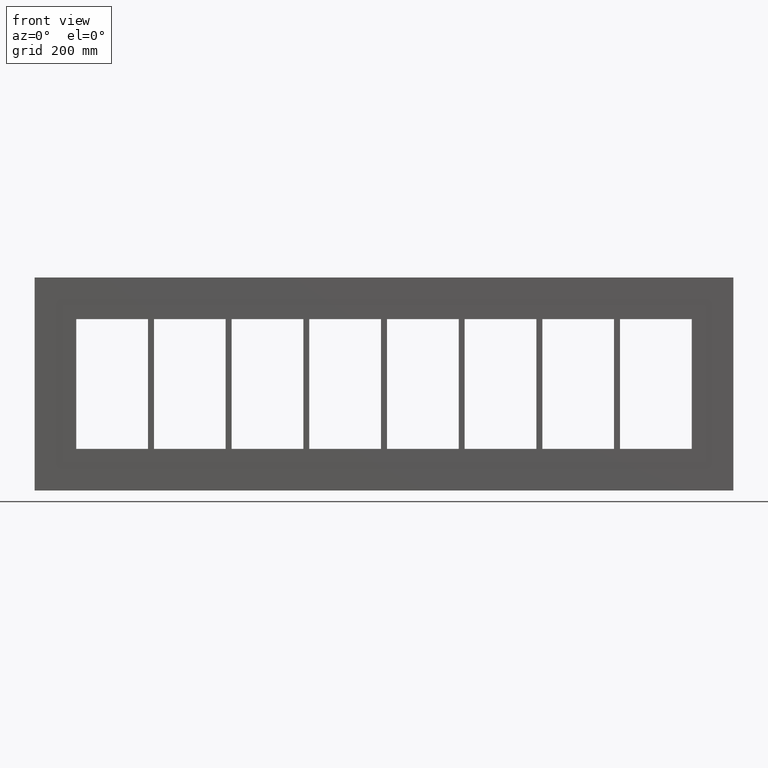
[diagram: clean part render]
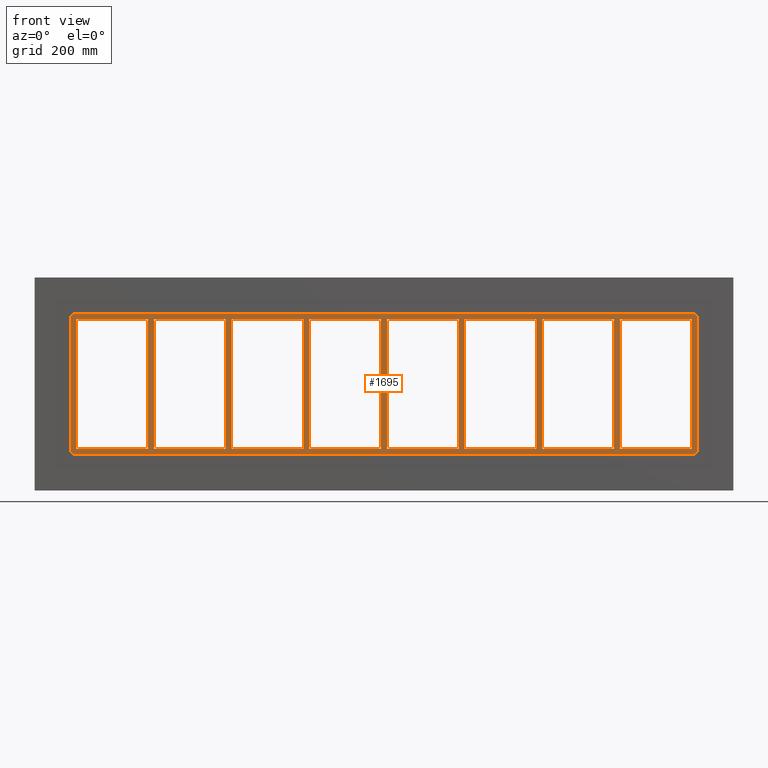
[diagram: same view with one face highlighted and labeled with its STEP entity id]
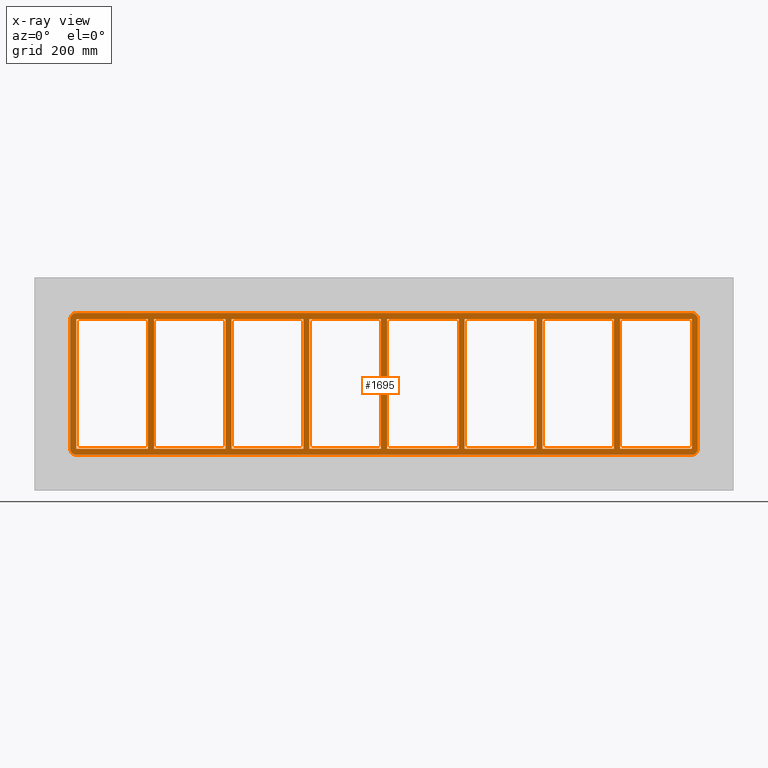
[diagram: x-ray of the same camera — body ghosted, the highlighted face saturated]
A machine part, front view. The second image highlights one B-rep face of the part: STEP entity #1695.
The next image is the same camera in x-ray: the body ghosted, the highlighted face saturated — about 0% of this face is hidden behind the body in this view.
In plain terms, the highlighted planar face has unit normal (0, 1, 0).
Its self-contained STEP definition (entity closure, byte-faithful):
#73=CARTESIAN_POINT('',(386.49999999999892,-3.0,-108.99999999999999));
#74=VERTEX_POINT('',#73);
#75=CARTESIAN_POINT('',(386.49999999999875,-3.0,108.99999999999999));
#76=VERTEX_POINT('',#75);
#77=CARTESIAN_POINT('',(386.49999999999892,-3.0,-108.99999999999999));
#78=DIRECTION('',(0.0,0.0,1.0));
#79=VECTOR('',#78,217.99999999999997);
#80=LINE('',#77,#79);
#81=EDGE_CURVE('',#74,#76,#80,.T.);
#113=CARTESIAN_POINT('',(396.50000000000375,-3.0,108.99999999999999));
#114=VERTEX_POINT('',#113);
#115=CARTESIAN_POINT('',(396.50000000000375,-3.0,-108.99999999998407));
#116=VERTEX_POINT('',#115);
#117=CARTESIAN_POINT('',(396.50000000000375,-3.0,108.99999999999999));
#118=DIRECTION('',(0.0,0.0,-1.0));
#119=VECTOR('',#118,217.99999999998406);
#120=LINE('',#117,#119);
#121=EDGE_CURVE('',#114,#116,#120,.T.);
#153=CARTESIAN_POINT('',(255.99999999999878,-3.0,-108.99999999999999));
#154=VERTEX_POINT('',#153);
#155=CARTESIAN_POINT('',(255.99999999999864,-3.0,108.99999999999999));
#156=VERTEX_POINT('',#155);
#157=CARTESIAN_POINT('',(255.99999999999878,-3.0,-108.99999999999999));
#158=DIRECTION('',(0.0,0.0,1.0));
#159=VECTOR('',#158,217.99999999999997);
#160=LINE('',#157,#159);
#161=EDGE_CURVE('',#154,#156,#160,.T.);
#193=CARTESIAN_POINT('',(266.00000000000369,-3.0,108.99999999999999));
#194=VERTEX_POINT('',#193);
#195=CARTESIAN_POINT('',(266.00000000000369,-3.0,-108.99999999998407));
#196=VERTEX_POINT('',#195);
#197=CARTESIAN_POINT('',(266.00000000000369,-3.0,108.99999999999999));
#198=DIRECTION('',(0.0,0.0,-1.0));
#199=VECTOR('',#198,217.99999999998406);
#200=LINE('',#197,#199);
#201=EDGE_CURVE('',#194,#196,#200,.T.);
#233=CARTESIAN_POINT('',(125.49999999999881,-3.0,-108.99999999999999));
#234=VERTEX_POINT('',#233);
#235=CARTESIAN_POINT('',(125.49999999999866,-3.0,108.99999999999999));
#236=VERTEX_POINT('',#235);
#237=CARTESIAN_POINT('',(125.49999999999881,-3.0,-108.99999999999999));
#238=DIRECTION('',(0.0,0.0,1.0));
#239=VECTOR('',#238,217.99999999999997);
#240=LINE('',#237,#239);
#241=EDGE_CURVE('',#234,#236,#240,.T.);
#273=CARTESIAN_POINT('',(135.50000000000369,-3.0,108.99999999999999));
#274=VERTEX_POINT('',#273);
#275=CARTESIAN_POINT('',(135.50000000000369,-3.0,-108.99999999998407));
#276=VERTEX_POINT('',#275);
#277=CARTESIAN_POINT('',(135.50000000000369,-3.0,108.99999999999999));
#278=DIRECTION('',(0.0,0.0,-1.0));
#279=VECTOR('',#278,217.99999999998406);
#280=LINE('',#277,#279);
#281=EDGE_CURVE('',#274,#276,#280,.T.);
#313=CARTESIAN_POINT('',(-5.000000000001208,-3.0,-108.99999999999999));
#314=VERTEX_POINT('',#313);
#315=CARTESIAN_POINT('',(-5.00000000000135,-3.0,108.99999999999999));
#316=VERTEX_POINT('',#315);
#317=CARTESIAN_POINT('',(-5.000000000001208,-3.0,-108.99999999999999));
#318=DIRECTION('',(0.0,0.0,1.0));
#319=VECTOR('',#318,217.99999999999997);
#320=LINE('',#317,#319);
#321=EDGE_CURVE('',#314,#316,#320,.T.);
#353=CARTESIAN_POINT('',(5.000000000003695,-3.0,108.99999999999999));
#354=VERTEX_POINT('',#353);
#355=CARTESIAN_POINT('',(5.000000000003695,-3.0,-108.99999999998407));
#356=VERTEX_POINT('',#355);
#357=CARTESIAN_POINT('',(5.000000000003695,-3.0,108.99999999999999));
#358=DIRECTION('',(0.0,0.0,-1.0));
#359=VECTOR('',#358,217.99999999998406);
#360=LINE('',#357,#359);
#361=EDGE_CURVE('',#354,#356,#360,.T.);
#393=CARTESIAN_POINT('',(-135.50000000000125,-3.0,-108.99999999999999));
#394=VERTEX_POINT('',#393);
#395=CARTESIAN_POINT('',(-135.50000000000139,-3.0,108.99999999999999));
#396=VERTEX_POINT('',#395);
#397=CARTESIAN_POINT('',(-135.50000000000125,-3.0,-108.99999999999999));
#398=DIRECTION('',(0.0,0.0,1.0));
#399=VECTOR('',#398,217.99999999999997);
#400=LINE('',#397,#399);
#401=EDGE_CURVE('',#394,#396,#400,.T.);
#433=CARTESIAN_POINT('',(-125.49999999999635,-3.0,108.99999999999999));
#434=VERTEX_POINT('',#433);
#435=CARTESIAN_POINT('',(-125.49999999999635,-3.0,-108.99999999998407));
#436=VERTEX_POINT('',#435);
#437=CARTESIAN_POINT('',(-125.49999999999635,-3.0,108.99999999999999));
#438=DIRECTION('',(0.0,0.0,-1.0));
#439=VECTOR('',#438,217.99999999998406);
#440=LINE('',#437,#439);
#441=EDGE_CURVE('',#434,#436,#440,.T.);
#473=CARTESIAN_POINT('',(-266.00000000000125,-3.0,-108.99999999999999));
#474=VERTEX_POINT('',#473);
#475=CARTESIAN_POINT('',(-266.00000000000142,-3.0,108.99999999999999));
#476=VERTEX_POINT('',#475);
#477=CARTESIAN_POINT('',(-266.00000000000125,-3.0,-108.99999999999999));
#478=DIRECTION('',(0.0,0.0,1.0));
#479=VECTOR('',#478,217.99999999999997);
#480=LINE('',#477,#479);
#481=EDGE_CURVE('',#474,#476,#480,.T.);
#513=CARTESIAN_POINT('',(-255.99999999999636,-3.0,108.99999999999999));
#514=VERTEX_POINT('',#513);
#515=CARTESIAN_POINT('',(-255.99999999999636,-3.0,-108.99999999998407));
#516=VERTEX_POINT('',#515);
#517=CARTESIAN_POINT('',(-255.99999999999636,-3.0,108.99999999999999));
#518=DIRECTION('',(0.0,0.0,-1.0));
#519=VECTOR('',#518,217.99999999998406);
#520=LINE('',#517,#519);
#521=EDGE_CURVE('',#514,#516,#520,.T.);
#562=CARTESIAN_POINT('',(-386.49999999999636,-3.0,-108.99999999998407));
#563=VERTEX_POINT('',#562);
#570=CARTESIAN_POINT('',(-266.00000000000119,-3.0,-108.99999999999999));
#571=DIRECTION('',(-1.0,0.0,0.0));
#572=VECTOR('',#571,120.49999999999523);
#573=LINE('',#570,#572);
#574=EDGE_CURVE('',#474,#563,#573,.T.);
#592=CARTESIAN_POINT('',(-135.50000000000125,-3.0,-108.99999999999999));
#593=DIRECTION('',(-1.0,0.0,0.0));
#594=VECTOR('',#593,120.49999999999517);
#595=LINE('',#592,#594);
#596=EDGE_CURVE('',#394,#516,#595,.T.);
#614=CARTESIAN_POINT('',(-5.000000000001194,-3.0,-108.99999999999999));
#615=DIRECTION('',(-1.0,0.0,0.0));
#616=VECTOR('',#615,120.49999999999517);
#617=LINE('',#614,#616);
#618=EDGE_CURVE('',#314,#436,#617,.T.);
#636=CARTESIAN_POINT('',(125.49999999999881,-3.0,-108.99999999999999));
#637=DIRECTION('',(-1.0,0.0,0.0));
#638=VECTOR('',#637,120.49999999999511);
#639=LINE('',#636,#638);
#640=EDGE_CURVE('',#234,#356,#639,.T.);
#658=CARTESIAN_POINT('',(255.99999999999878,-3.0,-108.99999999999999));
#659=DIRECTION('',(-1.0,0.0,0.0));
#660=VECTOR('',#659,120.49999999999508);
#661=LINE('',#658,#660);
#662=EDGE_CURVE('',#154,#276,#661,.T.);
#680=CARTESIAN_POINT('',(386.49999999999892,-3.0,-108.99999999999999));
#681=DIRECTION('',(-1.0,0.0,0.0));
#682=VECTOR('',#681,120.49999999999523);
#683=LINE('',#680,#682);
#684=EDGE_CURVE('',#74,#196,#683,.T.);
#695=CARTESIAN_POINT('',(517.0,-3.0,-108.99999999999999));
#696=VERTEX_POINT('',#695);
#697=CARTESIAN_POINT('',(517.0,-3.0,-108.99999999999999));
#698=DIRECTION('',(-1.0,0.0,0.0));
#699=VECTOR('',#698,120.49999999999625);
#700=LINE('',#697,#699);
#701=EDGE_CURVE('',#696,#116,#700,.T.);
#726=CARTESIAN_POINT('',(-386.49999999999636,-3.0,108.99999999999999));
#727=VERTEX_POINT('',#726);
#728=CARTESIAN_POINT('',(-386.49999999999636,-3.0,108.99999999999999));
#729=DIRECTION('',(1.0,0.0,0.0));
#730=VECTOR('',#729,120.49999999999494);
#731=LINE('',#728,#730);
#732=EDGE_CURVE('',#727,#476,#731,.T.);
#757=CARTESIAN_POINT('',(-255.99999999999636,-3.0,108.99999999999999));
#758=DIRECTION('',(1.0,0.0,0.0));
#759=VECTOR('',#758,120.49999999999497);
#760=LINE('',#757,#759);
#761=EDGE_CURVE('',#514,#396,#760,.T.);
#779=CARTESIAN_POINT('',(-125.49999999999636,-3.0,108.99999999999999));
#780=DIRECTION('',(1.0,0.0,0.0));
#781=VECTOR('',#780,120.499999999995);
#782=LINE('',#779,#781);
#783=EDGE_CURVE('',#434,#316,#782,.T.);
#801=CARTESIAN_POINT('',(5.000000000003695,-3.0,108.99999999999999));
#802=DIRECTION('',(1.0,0.0,0.0));
#803=VECTOR('',#802,120.49999999999494);
#804=LINE('',#801,#803);
#805=EDGE_CURVE('',#354,#236,#804,.T.);
#823=CARTESIAN_POINT('',(135.50000000000369,-3.0,108.99999999999999));
#824=DIRECTION('',(1.0,0.0,0.0));
#825=VECTOR('',#824,120.49999999999488);
#826=LINE('',#823,#825);
#827=EDGE_CURVE('',#274,#156,#826,.T.);
#853=CARTESIAN_POINT('',(517.0,-3.0,108.99999999999999));
#854=VERTEX_POINT('',#853);
#861=CARTESIAN_POINT('',(396.50000000000381,-3.0,108.99999999999999));
#862=DIRECTION('',(1.0,0.0,0.0));
#863=VECTOR('',#862,120.49999999999619);
#864=LINE('',#861,#863);
#865=EDGE_CURVE('',#114,#854,#864,.T.);
#876=CARTESIAN_POINT('',(266.00000000000369,-3.0,108.99999999999999));
#877=DIRECTION('',(1.0,0.0,0.0));
#878=VECTOR('',#877,120.49999999999511);
#879=LINE('',#876,#878);
#880=EDGE_CURVE('',#194,#76,#879,.T.);
#897=CARTESIAN_POINT('',(-396.50000000000125,-3.0,-108.99999999999999));
#898=VERTEX_POINT('',#897);
#899=CARTESIAN_POINT('',(-396.50000000000142,-3.0,108.99999999999999));
#900=VERTEX_POINT('',#899);
#901=CARTESIAN_POINT('',(-396.50000000000125,-3.0,-108.99999999999999));
#902=DIRECTION('',(0.0,0.0,1.0));
#903=VECTOR('',#902,217.99999999999997);
#904=LINE('',#901,#903);
#905=EDGE_CURVE('',#898,#900,#904,.T.);
#937=CARTESIAN_POINT('',(-386.49999999999636,-3.0,108.99999999999999));
#938=DIRECTION('',(0.0,0.0,-1.0));
#939=VECTOR('',#938,217.99999999998406);
#940=LINE('',#937,#939);
#941=EDGE_CURVE('',#727,#563,#940,.T.);
#968=CARTESIAN_POINT('',(-517.00000000000011,-3.0,-108.99999999999999));
#969=VERTEX_POINT('',#968);
#976=CARTESIAN_POINT('',(-396.50000000000119,-3.0,-108.99999999999999));
#977=DIRECTION('',(-1.0,0.0,0.0));
#978=VECTOR('',#977,120.49999999999903);
#979=LINE('',#976,#978);
#980=EDGE_CURVE('',#898,#969,#979,.T.);
#991=CARTESIAN_POINT('',(-517.00000000000011,-3.0,108.99999999999999));
#992=VERTEX_POINT('',#991);
#993=CARTESIAN_POINT('',(-517.00000000000011,-3.0,108.99999999999999));
#994=DIRECTION('',(1.0,0.0,0.0));
#995=VECTOR('',#994,120.49999999999869);
#996=LINE('',#993,#995);
#997=EDGE_CURVE('',#992,#900,#996,.T.);
#1317=CARTESIAN_POINT('',(-517.0,-3.0,-108.99999999999999));
#1318=DIRECTION('',(0.0,0.0,1.0));
#1319=VECTOR('',#1318,217.99999999999994);
#1320=LINE('',#1317,#1319);
#1321=EDGE_CURVE('',#969,#992,#1320,.T.);
#1332=CARTESIAN_POINT('',(517.0,-3.0,118.99999999999999));
#1333=VERTEX_POINT('',#1332);
#1340=CARTESIAN_POINT('',(527.0,-3.0,108.99999999999999));
#1341=VERTEX_POINT('',#1340);
#1342=CARTESIAN_POINT('',(517.0,-3.0,108.99999999999999));
#1343=DIRECTION('',(0.0,1.0,0.0));
#1344=DIRECTION('',(0.707106781186547,0.0,0.707106781186547));
#1345=AXIS2_PLACEMENT_3D('',#1342,#1343,#1344);
#1346=CIRCLE('',#1345,9.999999999999998);
#1347=EDGE_CURVE('',#1333,#1341,#1346,.T.);
#1397=CARTESIAN_POINT('',(527.0,-3.0,-109.00000000000003));
#1398=VERTEX_POINT('',#1397);
#1399=CARTESIAN_POINT('',(527.0,-3.0,-109.00000000000001));
#1400=DIRECTION('',(0.0,0.0,1.0));
#1401=VECTOR('',#1400,218.0);
#1402=LINE('',#1399,#1401);
#1403=EDGE_CURVE('',#1398,#1341,#1402,.T.);
#1444=CARTESIAN_POINT('',(-517.0,-3.0,118.99999999999999));
#1445=VERTEX_POINT('',#1444);
#1452=CARTESIAN_POINT('',(516.99999999999989,-3.0,118.99999999999999));
#1453=DIRECTION('',(-1.0,0.0,0.0));
#1454=VECTOR('',#1453,1034.0);
#1455=LINE('',#1452,#1454);
#1456=EDGE_CURVE('',#1333,#1445,#1455,.T.);
#1469=CARTESIAN_POINT('',(517.0,-3.0,-119.00000000000003));
#1470=VERTEX_POINT('',#1469);
#1471=CARTESIAN_POINT('',(517.0,-3.0,-109.00000000000003));
#1472=DIRECTION('',(0.0,1.0,0.0));
#1473=DIRECTION('',(0.707106781186547,0.0,-0.707106781186547));
#1474=AXIS2_PLACEMENT_3D('',#1471,#1472,#1473);
#1475=CIRCLE('',#1474,9.999999999999998);
#1476=EDGE_CURVE('',#1398,#1470,#1475,.T.);
#1518=CARTESIAN_POINT('',(-527.0,-3.0,108.99999999999999));
#1519=VERTEX_POINT('',#1518);
#1526=CARTESIAN_POINT('',(-517.0,-3.0,108.99999999999999));
#1527=DIRECTION('',(0.0,1.0,0.0));
#1528=DIRECTION('',(-0.707106781186547,0.0,0.707106781186547));
#1529=AXIS2_PLACEMENT_3D('',#1526,#1527,#1528);
#1530=CIRCLE('',#1529,9.999999999999998);
#1531=EDGE_CURVE('',#1519,#1445,#1530,.T.);
#1544=CARTESIAN_POINT('',(-517.0,-3.0,-119.00000000000003));
#1545=VERTEX_POINT('',#1544);
#1546=CARTESIAN_POINT('',(-517.0,-3.0,-119.00000000000003));
#1547=DIRECTION('',(1.0,0.0,0.0));
#1548=VECTOR('',#1547,1034.0);
#1549=LINE('',#1546,#1548);
#1550=EDGE_CURVE('',#1545,#1470,#1549,.T.);
#1591=CARTESIAN_POINT('',(-527.0,-3.0,-109.00000000000003));
#1592=VERTEX_POINT('',#1591);
#1599=CARTESIAN_POINT('',(-527.0,-3.0,108.99999999999997));
#1600=DIRECTION('',(0.0,0.0,-1.0));
#1601=VECTOR('',#1600,218.0);
#1602=LINE('',#1599,#1601);
#1603=EDGE_CURVE('',#1519,#1592,#1602,.T.);
#1616=CARTESIAN_POINT('',(-517.0,-3.0,-109.00000000000003));
#1617=DIRECTION('',(0.0,1.0,0.0));
#1618=DIRECTION('',(-0.707106781186547,0.0,-0.707106781186547));
#1619=AXIS2_PLACEMENT_3D('',#1616,#1617,#1618);
#1620=CIRCLE('',#1619,9.999999999999998);
#1621=EDGE_CURVE('',#1545,#1592,#1620,.T.);
#1627=CARTESIAN_POINT('',(-4.088920E-014,-3.0,-1.319894E-014));
#1628=DIRECTION('',(0.0,1.0,0.0));
#1629=DIRECTION('',(0.0,0.0,1.0));
#1630=AXIS2_PLACEMENT_3D('',#1627,#1628,#1629);
#1631=PLANE('',#1630);
#1632=ORIENTED_EDGE('',*,*,#1476,.F.);
#1633=ORIENTED_EDGE('',*,*,#1403,.T.);
#1634=ORIENTED_EDGE('',*,*,#1347,.F.);
#1635=ORIENTED_EDGE('',*,*,#1456,.T.);
#1636=ORIENTED_EDGE('',*,*,#1531,.F.);
#1637=ORIENTED_EDGE('',*,*,#1603,.T.);
#1638=ORIENTED_EDGE('',*,*,#1621,.F.);
#1639=ORIENTED_EDGE('',*,*,#1550,.T.);
#1640=EDGE_LOOP('',(#1632,#1633,#1634,#1635,#1636,#1637,#1638,#1639));
#1641=FACE_OUTER_BOUND('',#1640,.T.);
#1642=ORIENTED_EDGE('',*,*,#684,.T.);
#1643=ORIENTED_EDGE('',*,*,#201,.F.);
#1644=ORIENTED_EDGE('',*,*,#880,.T.);
#1645=ORIENTED_EDGE('',*,*,#81,.F.);
#1646=EDGE_LOOP('',(#1642,#1643,#1644,#1645));
#1647=FACE_BOUND('',#1646,.T.);
#1648=ORIENTED_EDGE('',*,*,#662,.T.);
#1649=ORIENTED_EDGE('',*,*,#281,.F.);
#1650=ORIENTED_EDGE('',*,*,#827,.T.);
#1651=ORIENTED_EDGE('',*,*,#161,.F.);
#1652=EDGE_LOOP('',(#1648,#1649,#1650,#1651));
#1653=FACE_BOUND('',#1652,.T.);
#1654=ORIENTED_EDGE('',*,*,#640,.T.);
#1655=ORIENTED_EDGE('',*,*,#361,.F.);
#1656=ORIENTED_EDGE('',*,*,#805,.T.);
#1657=ORIENTED_EDGE('',*,*,#241,.F.);
#1658=EDGE_LOOP('',(#1654,#1655,#1656,#1657));
#1659=FACE_BOUND('',#1658,.T.);
#1660=ORIENTED_EDGE('',*,*,#618,.T.);
#1661=ORIENTED_EDGE('',*,*,#441,.F.);
#1662=ORIENTED_EDGE('',*,*,#783,.T.);
#1663=ORIENTED_EDGE('',*,*,#321,.F.);
#1664=EDGE_LOOP('',(#1660,#1661,#1662,#1663));
#1665=FACE_BOUND('',#1664,.T.);
#1666=ORIENTED_EDGE('',*,*,#596,.T.);
#1667=ORIENTED_EDGE('',*,*,#521,.F.);
#1668=ORIENTED_EDGE('',*,*,#761,.T.);
#1669=ORIENTED_EDGE('',*,*,#401,.F.);
#1670=EDGE_LOOP('',(#1666,#1667,#1668,#1669));
#1671=FACE_BOUND('',#1670,.T.);
#1672=ORIENTED_EDGE('',*,*,#574,.T.);
#1673=ORIENTED_EDGE('',*,*,#941,.F.);
#1674=ORIENTED_EDGE('',*,*,#732,.T.);
#1675=ORIENTED_EDGE('',*,*,#481,.F.);
#1676=EDGE_LOOP('',(#1672,#1673,#1674,#1675));
#1677=FACE_BOUND('',#1676,.T.);
#1678=ORIENTED_EDGE('',*,*,#980,.T.);
#1679=ORIENTED_EDGE('',*,*,#1321,.T.);
#1680=ORIENTED_EDGE('',*,*,#997,.T.);
#1681=ORIENTED_EDGE('',*,*,#905,.F.);
#1682=EDGE_LOOP('',(#1678,#1679,#1680,#1681));
#1683=FACE_BOUND('',#1682,.T.);
#1684=ORIENTED_EDGE('',*,*,#121,.F.);
#1685=ORIENTED_EDGE('',*,*,#865,.T.);
#1686=CARTESIAN_POINT('',(517.0,-3.0,108.99999999999999));
#1687=DIRECTION('',(0.0,0.0,-1.0));
#1688=VECTOR('',#1687,217.99999999999997);
#1689=LINE('',#1686,#1688);
#1690=EDGE_CURVE('',#854,#696,#1689,.T.);
#1691=ORIENTED_EDGE('',*,*,#1690,.T.);
#1692=ORIENTED_EDGE('',*,*,#701,.T.);
#1693=EDGE_LOOP('',(#1684,#1685,#1691,#1692));
#1694=FACE_BOUND('',#1693,.T.);
#1695=ADVANCED_FACE('',(#1641,#1647,#1653,#1659,#1665,#1671,#1677,#1683,#1694),#1631,.F.);